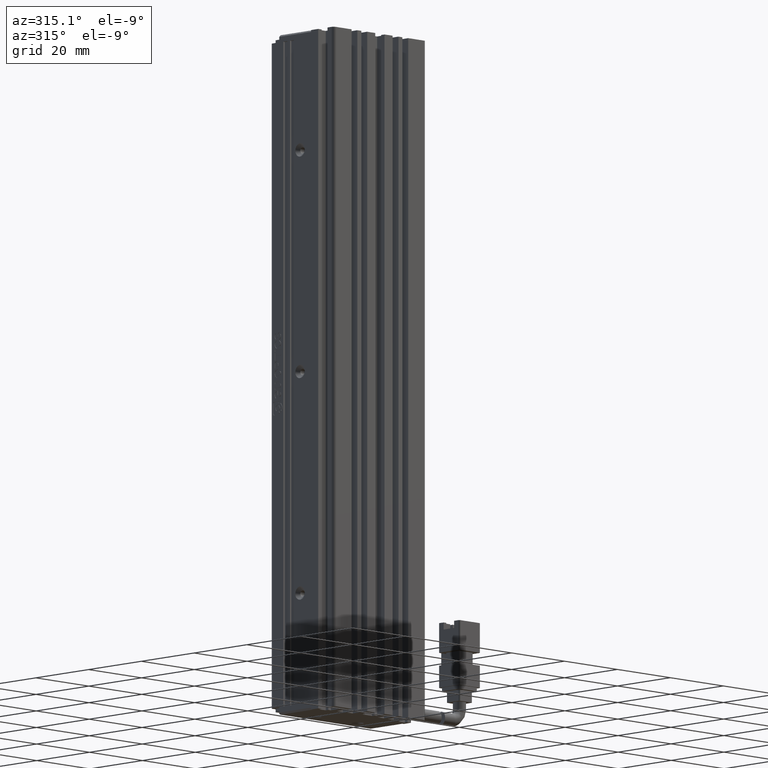
[diagram: clean part render]
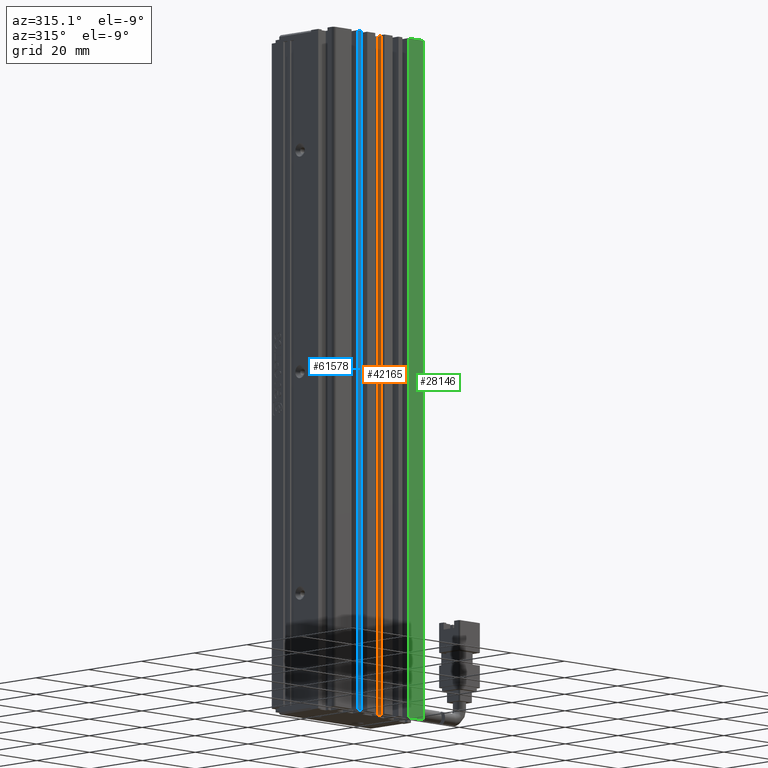
[diagram: same view with three faces highlighted in distinct colors, each labeled with its STEP entity id]
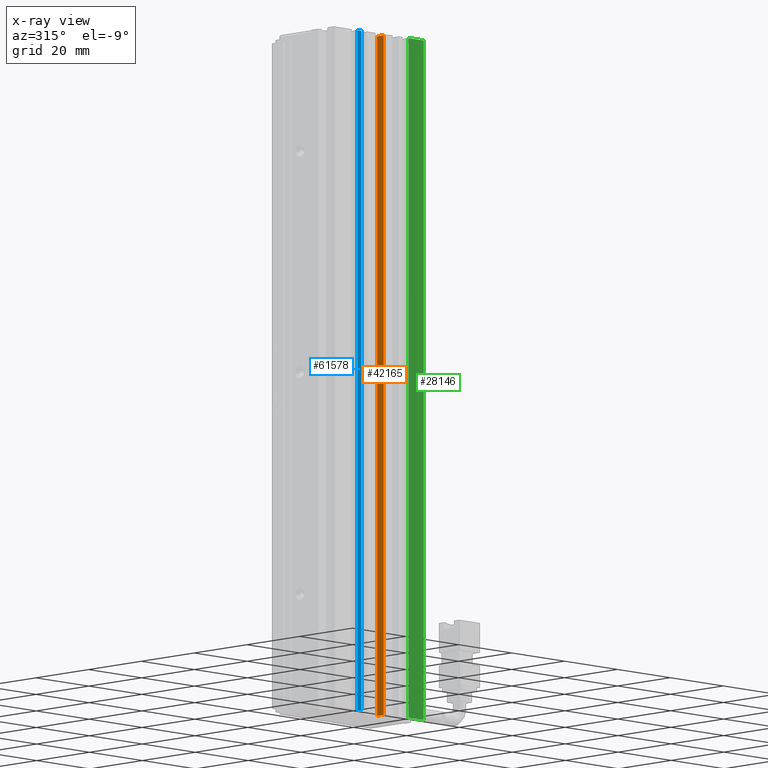
[diagram: x-ray of the same camera — body ghosted, the three highlighted faces saturated]
A machine part, auxiliary view with three faces highlighted in distinct colors.
The next image is the same camera in x-ray (body ghosted, the three faces saturated) — at least one of them is partly hidden behind the body in this view.
Their STEP definitions:

[orange] entity #42165 — the highlighted planar face has unit normal (-1, 0, 0).
#1148 = CARTESIAN_POINT ( 'NONE',  ( 43.67537974683542500, 7.083797468354437600, -207.0000000000000300 ) ) ;
#7847 = DIRECTION ( 'NONE',  ( 0.0000000000000000000, 0.0000000000000000000, 1.000000000000000000 ) ) ;
#10263 = CARTESIAN_POINT ( 'NONE',  ( 43.67537974683542500, 12.29073232304837200, -23.00000000000000700 ) ) ;
#10395 = VECTOR ( 'NONE', #13096, 1000.000000000000000 ) ;
#12867 = DIRECTION ( 'NONE',  ( -0.0000000000000000000, -0.0000000000000000000, -1.000000000000000000 ) ) ;
#13096 = DIRECTION ( 'NONE',  ( -0.0000000000000000000, -1.000000000000000000, 0.0000000000000000000 ) ) ;
#14971 = CARTESIAN_POINT ( 'NONE',  ( 43.67537974683542500, 7.083797468354437600, -23.00000000000000700 ) ) ;
#15997 = DIRECTION ( 'NONE',  ( -0.0000000000000000000, -1.000000000000000000, 0.0000000000000000000 ) ) ;
#16029 = CARTESIAN_POINT ( 'NONE',  ( 43.67537974683542500, 14.79073232304837000, -207.0000000000000300 ) ) ;
#16508 = VERTEX_POINT ( 'NONE', #16029 ) ;
#21280 = VECTOR ( 'NONE', #12867, 1000.000000000000000 ) ;
#22412 = ORIENTED_EDGE ( 'NONE', *, *, #24279, .T. ) ;
#24279 = EDGE_CURVE ( 'NONE', #35077, #16508, #48808, .T. ) ;
#26122 = PLANE ( 'NONE',  #68720 ) ;
#26500 = FACE_OUTER_BOUND ( 'NONE', #54139, .T. ) ;
#28557 = VECTOR ( 'NONE', #77983, 1000.000000000000000 ) ;
#30918 = CARTESIAN_POINT ( 'NONE',  ( 43.67537974683542500, 14.79073232304837000, -23.00000000000000700 ) ) ;
#32607 = VERTEX_POINT ( 'NONE', #39021 ) ;
#33113 = LINE ( 'NONE', #52395, #61640 ) ;
#35077 = VERTEX_POINT ( 'NONE', #38413 ) ;
#37033 = ORIENTED_EDGE ( 'NONE', *, *, #44381, .T. ) ;
#38413 = CARTESIAN_POINT ( 'NONE',  ( 43.67537974683542500, 14.79073232304837000, -23.00000000000000700 ) ) ;
#39021 = CARTESIAN_POINT ( 'NONE',  ( 43.67537974683542500, 12.29073232304837200, -207.0000000000000300 ) ) ;
#41149 = EDGE_CURVE ( 'NONE', #35077, #44277, #33113, .T. ) ;
#42165 = ADVANCED_FACE ( 'NONE', ( #26500 ), #26122, .T. ) ;
#44277 = VERTEX_POINT ( 'NONE', #10263 ) ;
#44381 = EDGE_CURVE ( 'NONE', #32607, #44277, #50562, .T. ) ;
#48808 = LINE ( 'NONE', #30918, #21280 ) ;
#50562 = LINE ( 'NONE', #53824, #28557 ) ;
#52395 = CARTESIAN_POINT ( 'NONE',  ( 43.67537974683542500, 7.083797468354437600, -23.00000000000000700 ) ) ;
#53824 = CARTESIAN_POINT ( 'NONE',  ( 43.67537974683542500, 12.29073232304837200, -23.00000000000000700 ) ) ;
#54139 = EDGE_LOOP ( 'NONE', ( #78539, #22412, #72394, #37033 ) ) ;
#56056 = LINE ( 'NONE', #1148, #10395 ) ;
#61072 = EDGE_CURVE ( 'NONE', #16508, #32607, #56056, .T. ) ;
#61640 = VECTOR ( 'NONE', #15997, 1000.000000000000000 ) ;
#68720 = AXIS2_PLACEMENT_3D ( 'NONE', #14971, #74528, #7847 ) ;
#72394 = ORIENTED_EDGE ( 'NONE', *, *, #61072, .T. ) ;
#74528 = DIRECTION ( 'NONE',  ( -1.000000000000000000, 0.0000000000000000000, 0.0000000000000000000 ) ) ;
#77983 = DIRECTION ( 'NONE',  ( 0.0000000000000000000, 0.0000000000000000000, 1.000000000000000000 ) ) ;
#78539 = ORIENTED_EDGE ( 'NONE', *, *, #41149, .F. ) ;

[blue] entity #61578 — the highlighted planar face has unit normal (0, -1, 0).
#4412 = DIRECTION ( 'NONE',  ( 0.0000000000000000000, 0.0000000000000000000, 1.000000000000000000 ) ) ;
#5430 = ORIENTED_EDGE ( 'NONE', *, *, #77869, .T. ) ;
#5746 = LINE ( 'NONE', #58885, #23792 ) ;
#8583 = DIRECTION ( 'NONE',  ( 0.0000000000000000000, -0.0000000000000000000, -1.000000000000000000 ) ) ;
#9509 = DIRECTION ( 'NONE',  ( -1.000000000000000000, -0.0000000000000000000, -0.0000000000000000000 ) ) ;
#10312 = EDGE_CURVE ( 'NONE', #67551, #49774, #5746, .T. ) ;
#13086 = VECTOR ( 'NONE', #4412, 1000.000000000000000 ) ;
#19112 = DIRECTION ( 'NONE',  ( 1.000000000000000000, 0.0000000000000000000, 0.0000000000000000000 ) ) ;
#20695 = EDGE_CURVE ( 'NONE', #28506, #49774, #29234, .T. ) ;
#20787 = PLANE ( 'NONE',  #28402 ) ;
#23792 = VECTOR ( 'NONE', #9509, 1000.000000000000000 ) ;
#24343 = EDGE_LOOP ( 'NONE', ( #39748, #60492, #5430, #74128 ) ) ;
#28402 = AXIS2_PLACEMENT_3D ( 'NONE', #51320, #39577, #8583 ) ;
#28506 = VERTEX_POINT ( 'NONE', #42611 ) ;
#29234 = LINE ( 'NONE', #39978, #13086 ) ;
#37906 = EDGE_CURVE ( 'NONE', #61808, #67551, #55679, .T. ) ;
#39577 = DIRECTION ( 'NONE',  ( 0.0000000000000000000, -1.000000000000000000, 0.0000000000000000000 ) ) ;
#39748 = ORIENTED_EDGE ( 'NONE', *, *, #10312, .T. ) ;
#39978 = CARTESIAN_POINT ( 'NONE',  ( 32.42537974683543200, 10.99073232304837000, -23.00000000000000700 ) ) ;
#40436 = CARTESIAN_POINT ( 'NONE',  ( 32.42537974683543200, 10.99073232304837000, -23.00000000000000700 ) ) ;
#42611 = CARTESIAN_POINT ( 'NONE',  ( 32.42537974683543200, 10.99073232304837000, -207.0000000000000300 ) ) ;
#44782 = CARTESIAN_POINT ( 'NONE',  ( 33.92537974683543200, 10.99073232304837000, -23.00000000000000700 ) ) ;
#46765 = CARTESIAN_POINT ( 'NONE',  ( 33.92537974683543200, 10.99073232304837000, -207.0000000000000300 ) ) ;
#49774 = VERTEX_POINT ( 'NONE', #40436 ) ;
#51320 = CARTESIAN_POINT ( 'NONE',  ( 40.92537974683542500, 10.99073232304837000, -23.00000000000000700 ) ) ;
#55679 = LINE ( 'NONE', #66397, #78465 ) ;
#58885 = CARTESIAN_POINT ( 'NONE',  ( 40.92537974683542500, 10.99073232304837000, -23.00000000000000700 ) ) ;
#60206 = LINE ( 'NONE', #67496, #77345 ) ;
#60492 = ORIENTED_EDGE ( 'NONE', *, *, #20695, .F. ) ;
#61578 = ADVANCED_FACE ( 'NONE', ( #72907 ), #20787, .T. ) ;
#61808 = VERTEX_POINT ( 'NONE', #46765 ) ;
#66397 = CARTESIAN_POINT ( 'NONE',  ( 33.92537974683543200, 10.99073232304837000, -23.00000000000000700 ) ) ;
#67496 = CARTESIAN_POINT ( 'NONE',  ( 40.92537974683542500, 10.99073232304837000, -207.0000000000000300 ) ) ;
#67551 = VERTEX_POINT ( 'NONE', #44782 ) ;
#72907 = FACE_OUTER_BOUND ( 'NONE', #24343, .T. ) ;
#74128 = ORIENTED_EDGE ( 'NONE', *, *, #37906, .T. ) ;
#77345 = VECTOR ( 'NONE', #19112, 1000.000000000000000 ) ;
#77869 = EDGE_CURVE ( 'NONE', #28506, #61808, #60206, .T. ) ;
#78087 = DIRECTION ( 'NONE',  ( 0.0000000000000000000, 0.0000000000000000000, 1.000000000000000000 ) ) ;
#78465 = VECTOR ( 'NONE', #78087, 1000.000000000000000 ) ;

[green] entity #28146 — the highlighted planar face has unit normal (-0, 1, 0).
#73 = LINE ( 'NONE', #4574, #38085 ) ;
#2996 = ORIENTED_EDGE ( 'NONE', *, *, #68383, .F. ) ;
#4574 = CARTESIAN_POINT ( 'NONE',  ( 57.42537974683542500, 10.99073232304837500, -23.00000000000000700 ) ) ;
#9111 = VERTEX_POINT ( 'NONE', #38308 ) ;
#9957 = LINE ( 'NONE', #37612, #27967 ) ;
#10397 = DIRECTION ( 'NONE',  ( -1.000000000000000000, -7.477256361968982400E-016, 0.0000000000000000000 ) ) ;
#11459 = DIRECTION ( 'NONE',  ( 1.000000000000000000, 0.0000000000000000000, 0.0000000000000000000 ) ) ;
#13968 = VERTEX_POINT ( 'NONE', #77769 ) ;
#16055 = EDGE_CURVE ( 'NONE', #60617, #13968, #30912, .T. ) ;
#19272 = DIRECTION ( 'NONE',  ( 1.000000000000000000, 0.0000000000000000000, 0.0000000000000000000 ) ) ;
#20824 = EDGE_LOOP ( 'NONE', ( #55927, #2996, #64320, #57113 ) ) ;
#21183 = AXIS2_PLACEMENT_3D ( 'NONE', #41144, #76558, #10397 ) ;
#24854 = LINE ( 'NONE', #66724, #57222 ) ;
#26424 = CARTESIAN_POINT ( 'NONE',  ( 51.62537974683542100, 10.99073232304837000, -22.99999999999999300 ) ) ;
#26858 = EDGE_CURVE ( 'NONE', #60617, #49499, #9957, .T. ) ;
#27662 = EDGE_CURVE ( 'NONE', #9111, #13968, #73, .T. ) ;
#27967 = VECTOR ( 'NONE', #68774, 1000.000000000000000 ) ;
#28146 = ADVANCED_FACE ( 'NONE', ( #77058 ), #70972, .F. ) ;
#28712 = DIRECTION ( 'NONE',  ( -0.0000000000000000000, -0.0000000000000000000, -1.000000000000000000 ) ) ;
#30443 = CARTESIAN_POINT ( 'NONE',  ( 51.62537974683542100, 10.99073232304837000, -207.0000000000000300 ) ) ;
#30912 = LINE ( 'NONE', #48702, #45209 ) ;
#37612 = CARTESIAN_POINT ( 'NONE',  ( 51.62537974683541400, 10.99073232304837000, -23.00000000000000700 ) ) ;
#38085 = VECTOR ( 'NONE', #28712, 1000.000000000000000 ) ;
#38308 = CARTESIAN_POINT ( 'NONE',  ( 57.42537974683542500, 10.99073232304837200, -23.00000000000000700 ) ) ;
#41144 = CARTESIAN_POINT ( 'NONE',  ( 40.92537974683542500, 10.99073232304836300, -23.00000000000000700 ) ) ;
#45209 = VECTOR ( 'NONE', #19272, 1000.000000000000000 ) ;
#48702 = CARTESIAN_POINT ( 'NONE',  ( 40.92537974683542500, 10.99073232304837000, -207.0000000000000300 ) ) ;
#49499 = VERTEX_POINT ( 'NONE', #26424 ) ;
#55927 = ORIENTED_EDGE ( 'NONE', *, *, #27662, .F. ) ;
#57113 = ORIENTED_EDGE ( 'NONE', *, *, #16055, .T. ) ;
#57222 = VECTOR ( 'NONE', #11459, 1000.000000000000000 ) ;
#60617 = VERTEX_POINT ( 'NONE', #30443 ) ;
#64320 = ORIENTED_EDGE ( 'NONE', *, *, #26858, .F. ) ;
#66724 = CARTESIAN_POINT ( 'NONE',  ( 40.92537974683542500, 10.99073232304837000, -23.00000000000000700 ) ) ;
#68383 = EDGE_CURVE ( 'NONE', #49499, #9111, #24854, .T. ) ;
#68774 = DIRECTION ( 'NONE',  ( 0.0000000000000000000, 0.0000000000000000000, 1.000000000000000000 ) ) ;
#70972 = PLANE ( 'NONE',  #21183 ) ;
#76558 = DIRECTION ( 'NONE',  ( -7.477256361968982400E-016, 1.000000000000000000, 0.0000000000000000000 ) ) ;
#77058 = FACE_OUTER_BOUND ( 'NONE', #20824, .T. ) ;
#77769 = CARTESIAN_POINT ( 'NONE',  ( 57.42537974683542500, 10.99073232304837200, -207.0000000000000300 ) ) ;